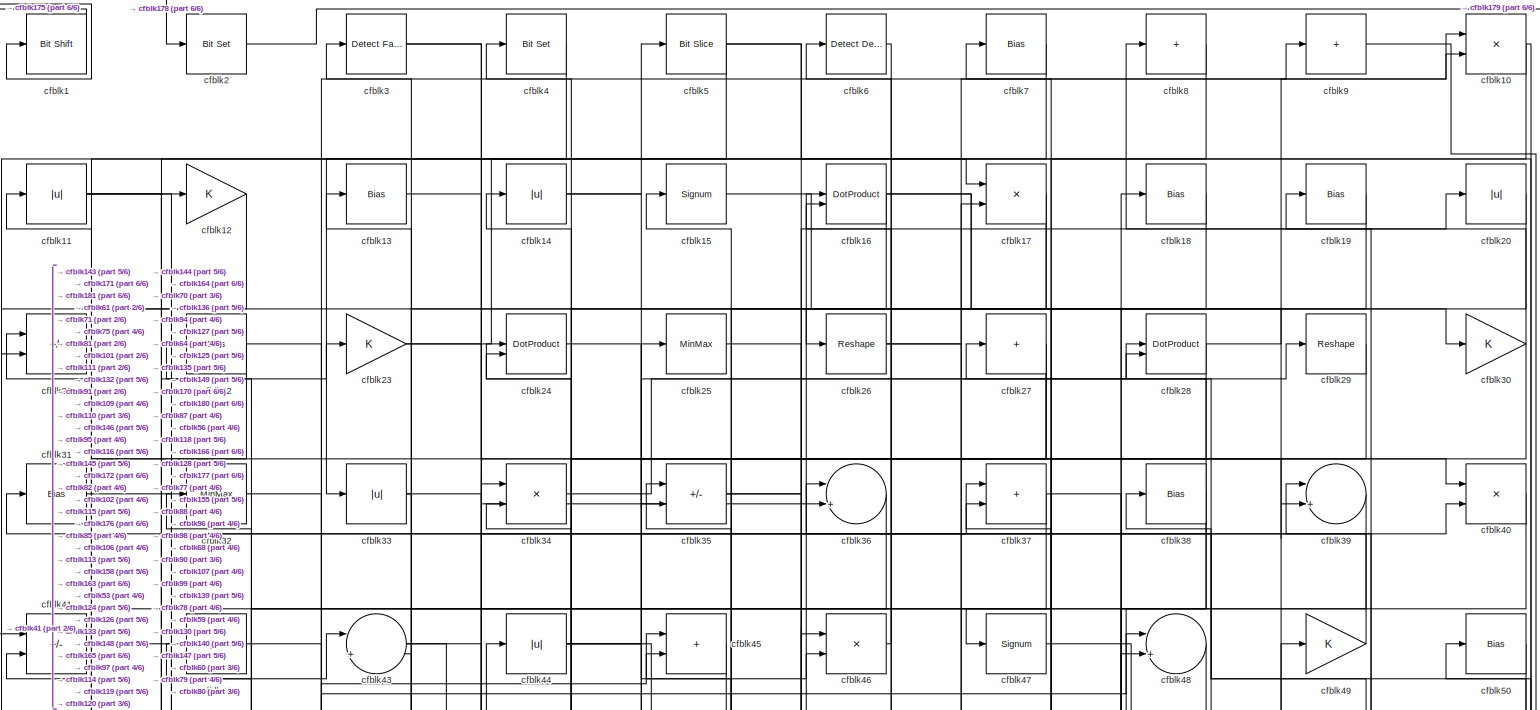
[diagram: root canvas - part 1/6, full width, top band]
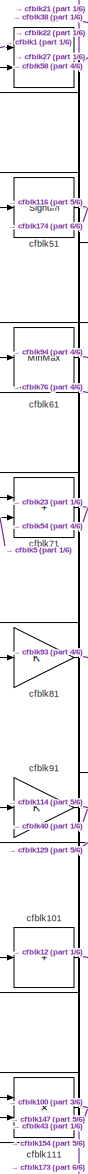
[diagram: root canvas - part 2/6, middle left region]
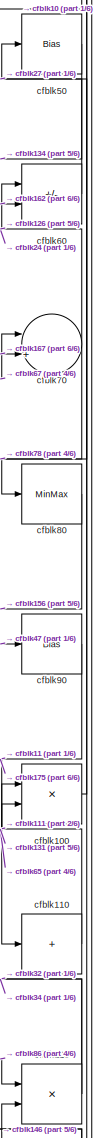
[diagram: root canvas - part 3/6, middle right region]
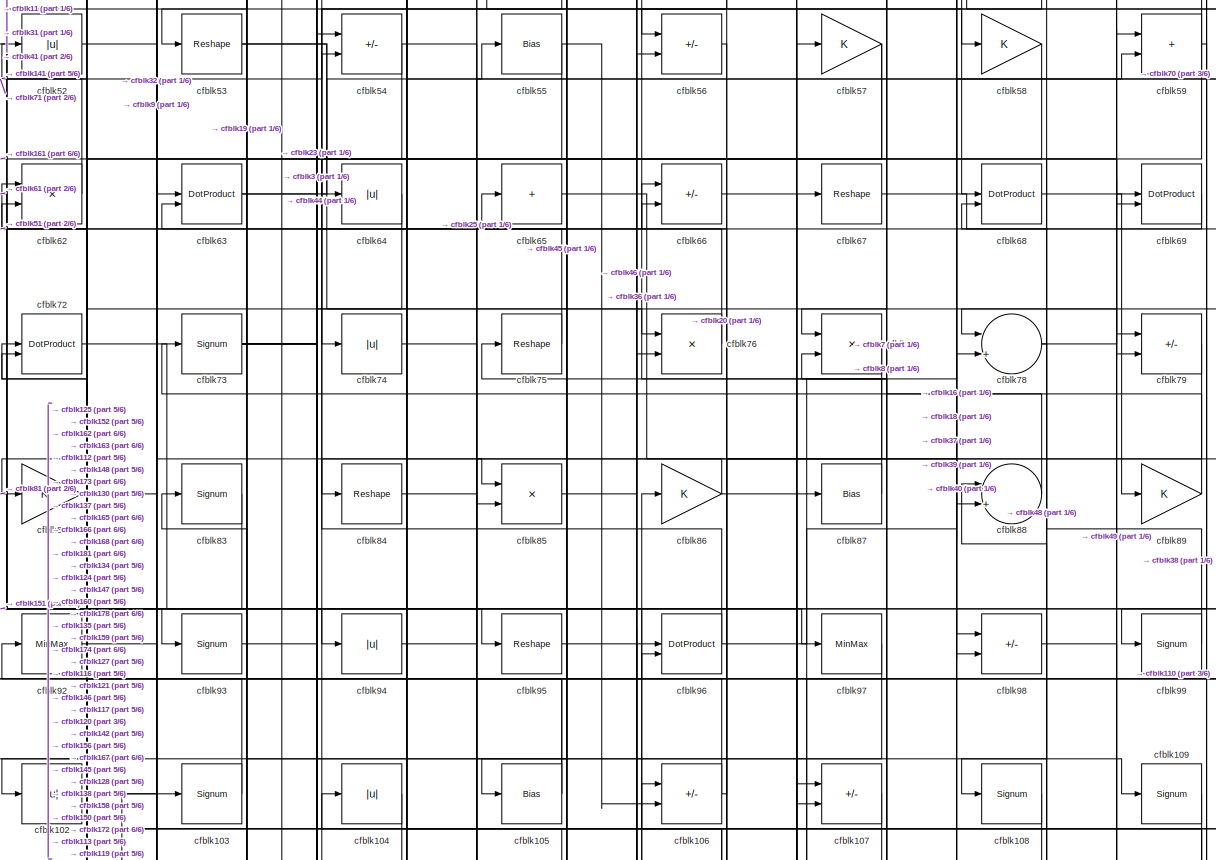
[diagram: root canvas - part 4/6, full width, middle band]
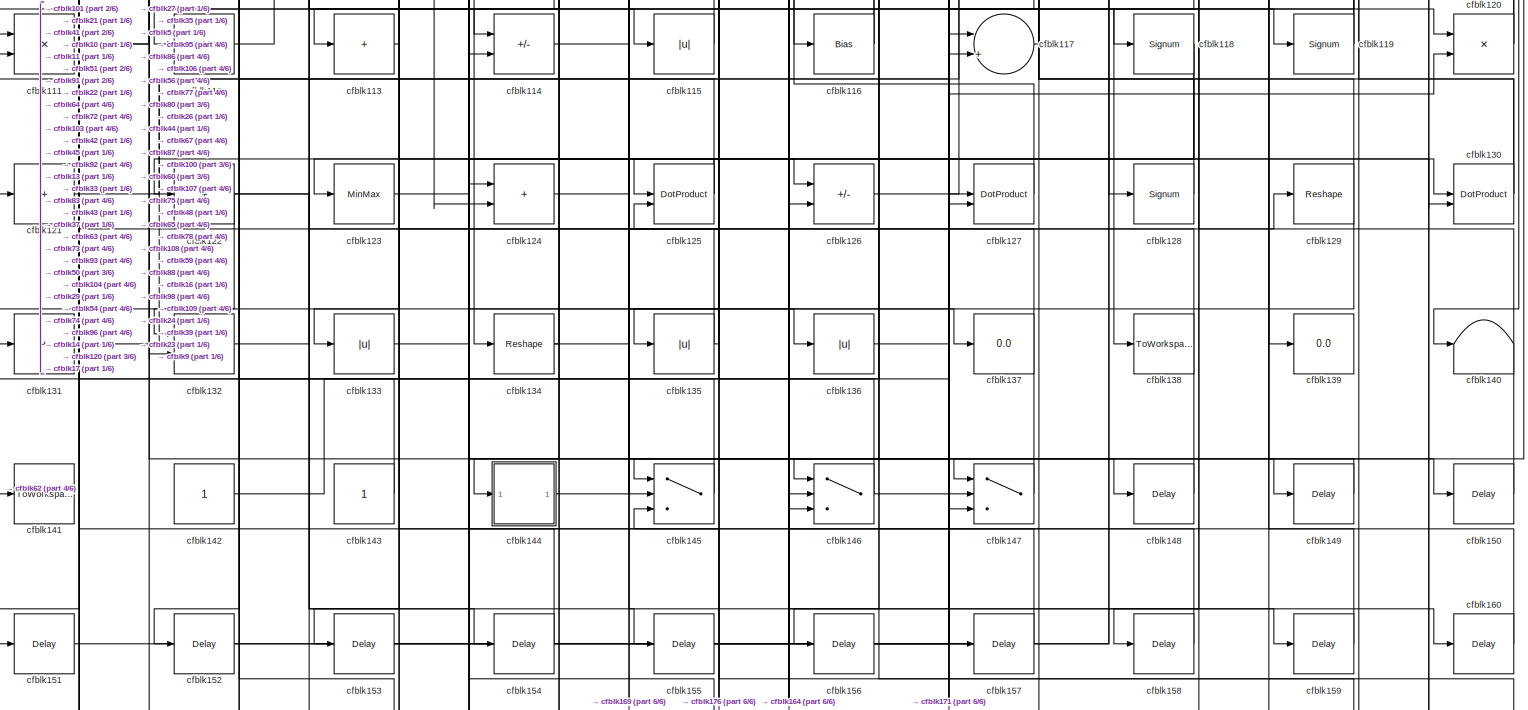
[diagram: root canvas - part 5/6, full width, bottom band]
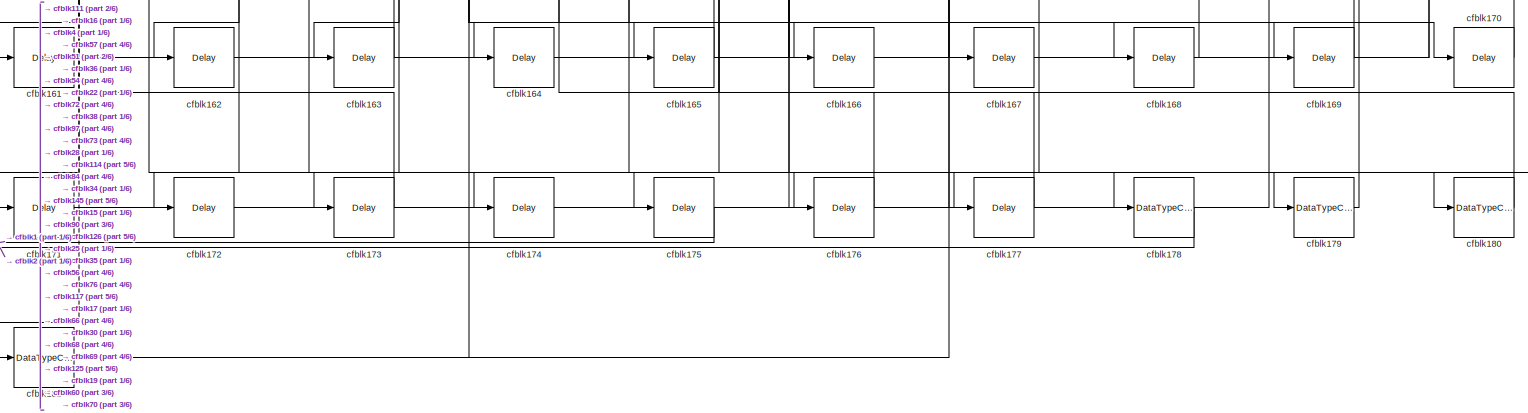
[diagram: root canvas - part 6/6, full width, bottom band]
MODEL slx_df7f4ab2e33d
KIND model
CONFIG AbsTol = auto
CONFIG EnableMultiTasking = off
CONFIG FixedStep = auto
CONFIG MaxStep = auto
CONFIG MinStep = auto
CONFIG RelTol = 1e-3
CONFIG SampleTimeConstraint = Unconstrained
CONFIG SolverName = VariableStepAuto
CONFIG StartTime = 0.0
CONFIG StopTime = 10.0
BLOCK [Reference] cfblk1  REF=hdlsllib/Logic and Bit
Operations/Bit Shift
  SourceBlock = hdlsllib/Logic and Bit\nOperations/Bit Shift
  SourceType = Bit Shift
BLOCK [Product] cfblk10
  Inputs = */
  RndMeth = Zero
  SaturateOnIntegerOverflow = on
BLOCK [Product] cfblk100
  Inputs = */
  RndMeth = Zero
  SaturateOnIntegerOverflow = on
BLOCK [Sum] cfblk101
  IconShape = rectangular
  Inputs = +
BLOCK [Abs] cfblk102
  SaturateOnIntegerOverflow = off
BLOCK [Signum] cfblk103
BLOCK [Abs] cfblk104
  SaturateOnIntegerOverflow = off
BLOCK [Bias] cfblk105
  Bias = 0.0
  SaturateOnIntegerOverflow = off
BLOCK [Sum] cfblk106
  IconShape = rectangular
  Inputs = +-
BLOCK [Sum] cfblk107
  IconShape = rectangular
  Inputs = +-
BLOCK [Signum] cfblk108
BLOCK [Signum] cfblk109
BLOCK [Abs] cfblk11
  SaturateOnIntegerOverflow = off
BLOCK [Sum] cfblk110
  IconShape = rectangular
  Inputs = +
BLOCK [Product] cfblk111
  Inputs = */
  RndMeth = Zero
  SaturateOnIntegerOverflow = on
BLOCK [MinMax] cfblk112
BLOCK [Sum] cfblk113
  IconShape = rectangular
  Inputs = +
BLOCK [Sum] cfblk114
  IconShape = rectangular
  Inputs = +-
BLOCK [Abs] cfblk115
  SaturateOnIntegerOverflow = off
BLOCK [Bias] cfblk116
  Bias = 0.0
  SaturateOnIntegerOverflow = off
BLOCK [Sum] cfblk117
  Inputs = |++
BLOCK [Signum] cfblk118
BLOCK [Signum] cfblk119
BLOCK [Gain] cfblk12
BLOCK [Product] cfblk120
  Inputs = */
  RndMeth = Zero
  SaturateOnIntegerOverflow = on
BLOCK [Sum] cfblk121
  IconShape = rectangular
  Inputs = +
BLOCK [Sum] cfblk122
  IconShape = rectangular
  Inputs = +
BLOCK [MinMax] cfblk123
BLOCK [Sum] cfblk124
  IconShape = rectangular
BLOCK [DotProduct] cfblk125
  OutDataTypeStr = Inherit: Inherit via internal rule
BLOCK [Sum] cfblk126
  IconShape = rectangular
  Inputs = +-
BLOCK [DotProduct] cfblk127
  OutDataTypeStr = Inherit: Inherit via internal rule
BLOCK [Signum] cfblk128
BLOCK [Reshape] cfblk129
BLOCK [Bias] cfblk13
  Bias = 0.0
  SaturateOnIntegerOverflow = off
BLOCK [DotProduct] cfblk130
  OutDataTypeStr = Inherit: Inherit via internal rule
BLOCK [Sum] cfblk131
  IconShape = rectangular
  Inputs = +
BLOCK [Product] cfblk132
  Inputs = */
  RndMeth = Zero
  SaturateOnIntegerOverflow = on
BLOCK [Abs] cfblk133
  SaturateOnIntegerOverflow = off
BLOCK [Reshape] cfblk134
BLOCK [Abs] cfblk135
  SaturateOnIntegerOverflow = off
BLOCK [Abs] cfblk136
  SaturateOnIntegerOverflow = off
BLOCK [Display] cfblk137
  Decimation = 1
BLOCK [ToWorkspace] cfblk138
  MaxDataPoints = inf
  SampleTime = -1
  SaveFormat = Timeseries
  VariableName = simout
BLOCK [Display] cfblk139
  Decimation = 1
BLOCK [Abs] cfblk14
  SaturateOnIntegerOverflow = off
BLOCK [Terminator] cfblk140
BLOCK [ToWorkspace] cfblk141
  MaxDataPoints = inf
  SampleTime = -1
  SaveFormat = Timeseries
  VariableName = simout
BLOCK [Constant] cfblk142
  SampleTime = -1
BLOCK [Constant] cfblk143
  SampleTime = -1
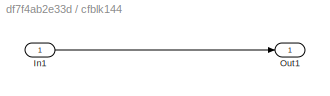
BLOCK [SubSystem] cfblk144
  LibrarySourceBlock = hdlsllib/Ports &\nSubsystems/Subsystem
BLOCK [Inport] cfblk144/In1
BLOCK [Outport] cfblk144/Out1
BLOCK [Switch] cfblk145
  InputSameDT = off
  SaturateOnIntegerOverflow = off
BLOCK [Switch] cfblk146
  InputSameDT = off
  SaturateOnIntegerOverflow = off
BLOCK [Switch] cfblk147
  InputSameDT = off
  SaturateOnIntegerOverflow = off
BLOCK [Delay] cfblk148
  InputPortMap = u0
  SampleTime = 1
BLOCK [Delay] cfblk149
  InputPortMap = u0
  SampleTime = 1
BLOCK [Signum] cfblk15
BLOCK [Delay] cfblk150
  InputPortMap = u0
  SampleTime = 1
BLOCK [Delay] cfblk151
  InputPortMap = u0
  SampleTime = 1
BLOCK [Delay] cfblk152
  InputPortMap = u0
  SampleTime = 1
BLOCK [Delay] cfblk153
  InputPortMap = u0
  SampleTime = 1
BLOCK [Delay] cfblk154
  InputPortMap = u0
  SampleTime = 1
BLOCK [Delay] cfblk155
  InputPortMap = u0
  SampleTime = 1
BLOCK [Delay] cfblk156
  InputPortMap = u0
  SampleTime = 1
BLOCK [Delay] cfblk157
  InputPortMap = u0
  SampleTime = 1
BLOCK [Delay] cfblk158
  InputPortMap = u0
  SampleTime = 1
BLOCK [Delay] cfblk159
  InputPortMap = u0
  SampleTime = 1
BLOCK [DotProduct] cfblk16
  OutDataTypeStr = Inherit: Inherit via internal rule
BLOCK [Delay] cfblk160
  InputPortMap = u0
  SampleTime = 1
BLOCK [Delay] cfblk161
  InputPortMap = u0
  SampleTime = 1
BLOCK [Delay] cfblk162
  InputPortMap = u0
  SampleTime = 1
BLOCK [Delay] cfblk163
  InputPortMap = u0
  SampleTime = 1
BLOCK [Delay] cfblk164
  InputPortMap = u0
  SampleTime = 1
BLOCK [Delay] cfblk165
  InputPortMap = u0
  SampleTime = 1
BLOCK [Delay] cfblk166
  InputPortMap = u0
  SampleTime = 1
BLOCK [Delay] cfblk167
  InputPortMap = u0
  SampleTime = 1
BLOCK [Delay] cfblk168
  InputPortMap = u0
  SampleTime = 1
BLOCK [Delay] cfblk169
  InputPortMap = u0
  SampleTime = 1
BLOCK [Product] cfblk17
  Inputs = */
  RndMeth = Zero
  SaturateOnIntegerOverflow = on
BLOCK [Delay] cfblk170
  InputPortMap = u0
  SampleTime = 1
BLOCK [Delay] cfblk171
  InputPortMap = u0
  SampleTime = 1
BLOCK [Delay] cfblk172
  InputPortMap = u0
  SampleTime = 1
BLOCK [Delay] cfblk173
  InputPortMap = u0
  SampleTime = 1
BLOCK [Delay] cfblk174
  InputPortMap = u0
  SampleTime = 1
BLOCK [Delay] cfblk175
  InputPortMap = u0
  SampleTime = 1
BLOCK [Delay] cfblk176
  InputPortMap = u0
  SampleTime = 1
BLOCK [Delay] cfblk177
  InputPortMap = u0
  SampleTime = 1
BLOCK [DataTypeConversion] cfblk178
  OutDataTypeStr = boolean
  RndMeth = Floor
  SaturateOnIntegerOverflow = off
BLOCK [DataTypeConversion] cfblk179
  OutDataTypeStr = uint8
  RndMeth = Floor
  SaturateOnIntegerOverflow = off
BLOCK [Bias] cfblk18
  Bias = 0.0
  SaturateOnIntegerOverflow = off
BLOCK [DataTypeConversion] cfblk180
  OutDataTypeStr = boolean
  RndMeth = Floor
  SaturateOnIntegerOverflow = off
BLOCK [DataTypeConversion] cfblk181
  RndMeth = Floor
  SaturateOnIntegerOverflow = off
BLOCK [Bias] cfblk19
  Bias = 0.0
  SaturateOnIntegerOverflow = off
BLOCK [Reference] cfblk2  REF=simulink/Logic and Bit
Operations/Bit Set
  LibrarySourceBlock = hdlsllib/Logic and Bit\nOperations/Bit Set
  SourceBlock = simulink/Logic and Bit\nOperations/Bit Set
  SourceType = Bit Set
BLOCK [Abs] cfblk20
  SaturateOnIntegerOverflow = off
BLOCK [Sum] cfblk21
  IconShape = rectangular
  Inputs = +-
BLOCK [Bias] cfblk22
  Bias = 0.0
  SaturateOnIntegerOverflow = off
BLOCK [Gain] cfblk23
BLOCK [DotProduct] cfblk24
  OutDataTypeStr = Inherit: Inherit via internal rule
BLOCK [MinMax] cfblk25
BLOCK [Reshape] cfblk26
BLOCK [Sum] cfblk27
  IconShape = rectangular
  Inputs = +
BLOCK [DotProduct] cfblk28
  OutDataTypeStr = Inherit: Inherit via internal rule
BLOCK [Reshape] cfblk29
BLOCK [Reference] cfblk3  REF=hdlsllib/Logic and Bit
Operations/Detect Fall
Negative
  SourceBlock = hdlsllib/Logic and Bit\nOperations/Detect Fall\nNegative
  SourceType = Detect Fall Negative
BLOCK [Gain] cfblk30
BLOCK [Bias] cfblk31
  Bias = 0.0
  SaturateOnIntegerOverflow = off
BLOCK [MinMax] cfblk32
BLOCK [Abs] cfblk33
  SaturateOnIntegerOverflow = off
BLOCK [Product] cfblk34
  Inputs = */
  RndMeth = Zero
  SaturateOnIntegerOverflow = on
BLOCK [Sum] cfblk35
  IconShape = rectangular
  Inputs = +-
BLOCK [Sum] cfblk36
  Inputs = |++
BLOCK [Sum] cfblk37
  IconShape = rectangular
BLOCK [Bias] cfblk38
  Bias = 0.0
  SaturateOnIntegerOverflow = off
BLOCK [Sum] cfblk39
  Inputs = |++
BLOCK [Reference] cfblk4  REF=simulink/Logic and Bit
Operations/Bit Set
  LibrarySourceBlock = hdlsllib/Logic and Bit\nOperations/Bit Set
  SourceBlock = simulink/Logic and Bit\nOperations/Bit Set
  SourceType = Bit Set
BLOCK [Product] cfblk40
  Inputs = */
  RndMeth = Zero
  SaturateOnIntegerOverflow = on
BLOCK [Sum] cfblk41
  IconShape = rectangular
  Inputs = +-
BLOCK [Signum] cfblk42
BLOCK [Sum] cfblk43
  Inputs = |++
BLOCK [Abs] cfblk44
  SaturateOnIntegerOverflow = off
BLOCK [Sum] cfblk45
  IconShape = rectangular
BLOCK [Product] cfblk46
  Inputs = */
  RndMeth = Zero
  SaturateOnIntegerOverflow = on
BLOCK [Signum] cfblk47
BLOCK [Sum] cfblk48
  Inputs = |++
BLOCK [Gain] cfblk49
BLOCK [Reference] cfblk5  REF=hdlsllib/Logic and Bit
Operations/Bit Slice
  SourceBlock = hdlsllib/Logic and Bit\nOperations/Bit Slice
  SourceType = Bit Slice
BLOCK [Bias] cfblk50
  Bias = 0.0
  SaturateOnIntegerOverflow = off
BLOCK [Signum] cfblk51
BLOCK [Abs] cfblk52
  SaturateOnIntegerOverflow = off
BLOCK [Reshape] cfblk53
BLOCK [Sum] cfblk54
  IconShape = rectangular
  Inputs = +-
BLOCK [Bias] cfblk55
  Bias = 0.0
  SaturateOnIntegerOverflow = off
BLOCK [Sum] cfblk56
  IconShape = rectangular
  Inputs = +-
BLOCK [Gain] cfblk57
BLOCK [Gain] cfblk58
BLOCK [Sum] cfblk59
  IconShape = rectangular
BLOCK [Reference] cfblk6  REF=simulink/Logic and Bit
Operations/Detect
Decrease
  LibrarySourceBlock = hdlsllib/Logic and Bit\nOperations/Detect\nDecrease
  SourceBlock = simulink/Logic and Bit\nOperations/Detect\nDecrease
  SourceType = Detect Decrease
BLOCK [Sum] cfblk60
  IconShape = rectangular
  Inputs = +-
BLOCK [MinMax] cfblk61
BLOCK [Product] cfblk62
  Inputs = */
  RndMeth = Zero
  SaturateOnIntegerOverflow = on
BLOCK [DotProduct] cfblk63
  OutDataTypeStr = Inherit: Inherit via internal rule
BLOCK [Abs] cfblk64
  SaturateOnIntegerOverflow = off
BLOCK [Sum] cfblk65
  IconShape = rectangular
  Inputs = +
BLOCK [Sum] cfblk66
  IconShape = rectangular
  Inputs = +-
BLOCK [Reshape] cfblk67
BLOCK [DotProduct] cfblk68
  OutDataTypeStr = Inherit: Inherit via internal rule
BLOCK [DotProduct] cfblk69
  OutDataTypeStr = Inherit: Inherit via internal rule
BLOCK [Bias] cfblk7
  Bias = 0.0
  SaturateOnIntegerOverflow = off
BLOCK [Sum] cfblk70
  Inputs = |++
BLOCK [Sum] cfblk71
  IconShape = rectangular
BLOCK [DotProduct] cfblk72
  OutDataTypeStr = Inherit: Inherit via internal rule
BLOCK [Signum] cfblk73
BLOCK [Abs] cfblk74
  SaturateOnIntegerOverflow = off
BLOCK [Reshape] cfblk75
BLOCK [Product] cfblk76
  Inputs = */
  RndMeth = Zero
  SaturateOnIntegerOverflow = on
BLOCK [Product] cfblk77
  Inputs = */
  RndMeth = Zero
  SaturateOnIntegerOverflow = on
BLOCK [Sum] cfblk78
  Inputs = |++
BLOCK [Sum] cfblk79
  IconShape = rectangular
  Inputs = +-
BLOCK [Sum] cfblk8
  IconShape = rectangular
  Inputs = +
BLOCK [MinMax] cfblk80
BLOCK [Gain] cfblk81
BLOCK [Gain] cfblk82
BLOCK [Signum] cfblk83
BLOCK [Reshape] cfblk84
BLOCK [Product] cfblk85
  Inputs = */
  RndMeth = Zero
  SaturateOnIntegerOverflow = on
BLOCK [Gain] cfblk86
BLOCK [Bias] cfblk87
  Bias = 0.0
  SaturateOnIntegerOverflow = off
BLOCK [Sum] cfblk88
  Inputs = |++
BLOCK [Gain] cfblk89
BLOCK [Sum] cfblk9
  IconShape = rectangular
  Inputs = +
BLOCK [Bias] cfblk90
  Bias = 0.0
  SaturateOnIntegerOverflow = off
BLOCK [Gain] cfblk91
BLOCK [MinMax] cfblk92
BLOCK [Signum] cfblk93
BLOCK [Abs] cfblk94
  SaturateOnIntegerOverflow = off
BLOCK [Reshape] cfblk95
BLOCK [DotProduct] cfblk96
  OutDataTypeStr = Inherit: Inherit via internal rule
BLOCK [MinMax] cfblk97
BLOCK [Sum] cfblk98
  IconShape = rectangular
  Inputs = +-
BLOCK [Signum] cfblk99
LINE cfblk100:1 -> cfblk50:1
LINE cfblk101:1 -> cfblk12:1
LINE cfblk102:1 -> cfblk48:1
LINE cfblk103:1 -> cfblk92:1
LINE cfblk104:1 -> cfblk112:1
NET cfblk105:1 -> cfblk52:1, cfblk62:1
NET cfblk106:1 -> cfblk3:1, cfblk66:1
LINE cfblk107:1 -> cfblk145:2
LINE cfblk108:1 -> cfblk138:1
LINE cfblk109:1 -> cfblk113:1
NET cfblk10:1 -> cfblk132:2, cfblk80:1
LINE cfblk110:1 -> cfblk65:1
NET cfblk111:1 -> cfblk100:2, cfblk43:1
LINE cfblk112:1 -> cfblk103:1
LINE cfblk113:1 -> cfblk13:1
LINE cfblk114:1 -> cfblk169:1
LINE cfblk115:1 -> cfblk14:1
NET cfblk116:1 -> cfblk106:1, cfblk42:1
LINE cfblk117:1 -> cfblk77:2
NET cfblk118:1 -> cfblk122:1, cfblk153:1
NET cfblk119:1 -> cfblk24:1, cfblk62:2
NET cfblk11:1 -> cfblk109:1, cfblk110:1, cfblk146:3
NET cfblk120:1 -> cfblk32:1, cfblk34:2
LINE cfblk121:1 -> cfblk67:1
NET cfblk122:1 -> cfblk132:1, cfblk154:1, cfblk155:1
LINE cfblk123:1 -> cfblk130:1
LINE cfblk124:1 -> cfblk96:2
NET cfblk125:1 -> cfblk123:1, cfblk72:1
LINE cfblk126:1 -> cfblk60:1
LINE cfblk127:1 -> cfblk86:1
LINE cfblk128:1 -> cfblk37:2
NET cfblk129:1 -> cfblk131:1, cfblk91:1
LINE cfblk12:1 -> cfblk21:2
NET cfblk130:1 -> cfblk39:1, cfblk75:1
LINE cfblk131:1 -> cfblk100:1
LINE cfblk132:1 -> cfblk45:1
LINE cfblk133:1 -> cfblk37:1
NET cfblk134:1 -> cfblk104:1, cfblk59:2
NET cfblk135:1 -> cfblk35:1, cfblk83:1
LINE cfblk136:1 -> cfblk157:1
LINE cfblk13:1 -> cfblk36:2
LINE cfblk142:1 -> cfblk87:1
LINE cfblk143:1 -> cfblk21:1
LINE cfblk144/In1:1 -> cfblk144/Out1:1
LINE cfblk144:1 -> cfblk129:1
LINE cfblk145:1 -> cfblk22:1
NET cfblk146:1 -> cfblk120:2, cfblk45:2
LINE cfblk147:1 -> cfblk101:1
LINE cfblk148:1 -> cfblk63:1
LINE cfblk149:1 -> cfblk145:1
NET cfblk14:1 -> cfblk39:2, cfblk5:1
LINE cfblk150:1 -> cfblk88:1
LINE cfblk151:1 -> cfblk78:2
LINE cfblk152:1 -> cfblk127:1
LINE cfblk153:1 -> cfblk146:2
LINE cfblk154:1 -> cfblk41:2
LINE cfblk155:1 -> cfblk48:2
LINE cfblk156:1 -> cfblk107:1
LINE cfblk157:1 -> cfblk124:1
LINE cfblk158:1 -> cfblk43:2
LINE cfblk159:1 -> cfblk59:1
LINE cfblk15:1 -> cfblk30:1
LINE cfblk160:1 -> cfblk96:1
LINE cfblk161:1 -> cfblk56:2
LINE cfblk162:1 -> cfblk60:2
LINE cfblk163:1 -> cfblk72:2
LINE cfblk164:1 -> cfblk126:2
LINE cfblk165:1 -> cfblk34:1
LINE cfblk166:1 -> cfblk17:2
LINE cfblk167:1 -> cfblk70:2
LINE cfblk168:1 -> cfblk68:2
LINE cfblk169:1 -> cfblk125:2
NET cfblk16:1 -> cfblk139:1, cfblk171:1, cfblk88:2
LINE cfblk170:1 -> cfblk16:2
LINE cfblk171:1 -> cfblk117:2
LINE cfblk172:1 -> cfblk69:1
LINE cfblk173:1 -> cfblk111:2
LINE cfblk174:1 -> cfblk76:2
LINE cfblk175:1 -> cfblk1:1
LINE cfblk176:1 -> cfblk145:3
LINE cfblk177:1 -> cfblk15:1
LINE cfblk178:1 -> cfblk2:1
LINE cfblk179:1 -> cfblk19:1
NET cfblk17:1 -> cfblk114:1, cfblk125:1
LINE cfblk180:1 -> cfblk4:1
NET cfblk181:1 -> cfblk54:1, cfblk57:1
LINE cfblk18:1 -> cfblk47:1
LINE cfblk19:1 -> cfblk53:1
LINE cfblk1:1 -> cfblk41:1
LINE cfblk20:1 -> cfblk56:1
LINE cfblk21:1 -> cfblk81:1
NET cfblk22:1 -> cfblk111:1, cfblk176:1
NET cfblk23:1 -> cfblk140:1, cfblk79:2
LINE cfblk24:1 -> cfblk136:1
LINE cfblk25:1 -> cfblk180:1
NET cfblk26:1 -> cfblk10:2, cfblk118:1
NET cfblk27:1 -> cfblk135:1, cfblk35:2, cfblk71:1
NET cfblk28:1 -> cfblk10:1, cfblk164:1
LINE cfblk29:1 -> cfblk144:1
LINE cfblk2:1 -> cfblk179:1
NET cfblk30:1 -> cfblk177:1, cfblk8:1
LINE cfblk31:1 -> cfblk95:1
LINE cfblk32:1 -> cfblk85:1
NET cfblk33:1 -> cfblk126:1, cfblk133:1
LINE cfblk34:1 -> cfblk29:1
NET cfblk35:1 -> cfblk170:1, cfblk20:1
LINE cfblk36:1 -> cfblk172:1
NET cfblk37:1 -> cfblk82:1, cfblk98:1
NET cfblk38:1 -> cfblk163:1, cfblk28:2, cfblk61:1
LINE cfblk39:1 -> cfblk98:2
NET cfblk3:1 -> cfblk40:1, cfblk97:1
LINE cfblk40:1 -> cfblk68:1
LINE cfblk41:1 -> cfblk58:1
LINE cfblk42:1 -> cfblk115:1
NET cfblk43:1 -> cfblk124:2, cfblk148:1
NET cfblk44:1 -> cfblk127:2, cfblk28:1, cfblk46:2
LINE cfblk45:1 -> cfblk64:1
LINE cfblk46:1 -> cfblk6:1
LINE cfblk47:1 -> cfblk90:1
LINE cfblk48:1 -> cfblk107:2
LINE cfblk49:1 -> cfblk16:1
LINE cfblk4:1 -> cfblk181:1
LINE cfblk50:1 -> cfblk134:1
NET cfblk51:1 -> cfblk116:1, cfblk174:1
LINE cfblk52:1 -> cfblk69:2
NET cfblk53:1 -> cfblk76:1, cfblk79:1
NET cfblk54:1 -> cfblk147:2, cfblk162:1
NET cfblk55:1 -> cfblk102:1, cfblk106:2
LINE cfblk56:1 -> cfblk146:1
NET cfblk57:1 -> cfblk161:1, cfblk74:1
LINE cfblk58:1 -> cfblk105:1
NET cfblk59:1 -> cfblk158:1, cfblk38:1, cfblk99:1
NET cfblk5:1 -> cfblk149:1, cfblk17:1, cfblk71:2
LINE cfblk60:1 -> cfblk27:1
LINE cfblk61:1 -> cfblk94:1
LINE cfblk62:1 -> cfblk141:1
NET cfblk63:1 -> cfblk130:2, cfblk55:1
LINE cfblk64:1 -> cfblk152:1
LINE cfblk65:1 -> cfblk128:1
LINE cfblk66:1 -> cfblk167:1
LINE cfblk67:1 -> cfblk70:1
LINE cfblk68:1 -> cfblk89:1
LINE cfblk69:1 -> cfblk63:2
LINE cfblk6:1 -> cfblk26:1
NET cfblk70:1 -> cfblk24:2, cfblk78:1
NET cfblk71:1 -> cfblk23:1, cfblk54:2
LINE cfblk72:1 -> cfblk117:1
NET cfblk73:1 -> cfblk147:3, cfblk165:1, cfblk166:1, cfblk168:1, cfblk66:2
LINE cfblk74:1 -> cfblk160:1
LINE cfblk75:1 -> cfblk11:1
LINE cfblk76:1 -> cfblk51:1
LINE cfblk77:1 -> cfblk121:1
NET cfblk78:1 -> cfblk108:1, cfblk49:1
LINE cfblk79:1 -> cfblk85:2
LINE cfblk7:1 -> cfblk33:1
LINE cfblk80:1 -> cfblk156:1
LINE cfblk81:1 -> cfblk93:1
LINE cfblk82:1 -> cfblk9:1
LINE cfblk83:1 -> cfblk151:1
LINE cfblk84:1 -> cfblk178:1
LINE cfblk85:1 -> cfblk46:1
NET cfblk86:1 -> cfblk120:1, cfblk84:1
LINE cfblk87:1 -> cfblk36:1
LINE cfblk88:1 -> cfblk7:1
LINE cfblk89:1 -> cfblk73:1
LINE cfblk8:1 -> cfblk77:1
LINE cfblk90:1 -> cfblk175:1
NET cfblk91:1 -> cfblk114:2, cfblk40:2
LINE cfblk92:1 -> cfblk119:1
LINE cfblk93:1 -> cfblk137:1
LINE cfblk94:1 -> cfblk25:1
LINE cfblk95:1 -> cfblk159:1
NET cfblk96:1 -> cfblk18:1, cfblk44:1
LINE cfblk97:1 -> cfblk173:1
LINE cfblk98:1 -> cfblk150:1
LINE cfblk99:1 -> cfblk31:1
LINE cfblk9:1 -> cfblk147:1
note: NET lines group one-source signal fan-out (src -> all destinations, sorted); 1:1 wires keep LINE
